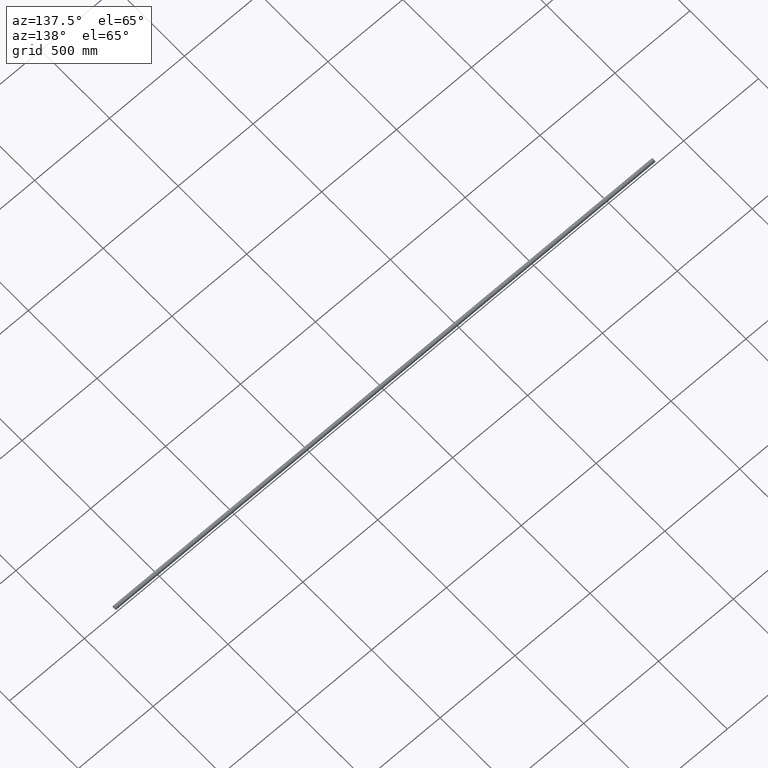
[diagram: clean part render]
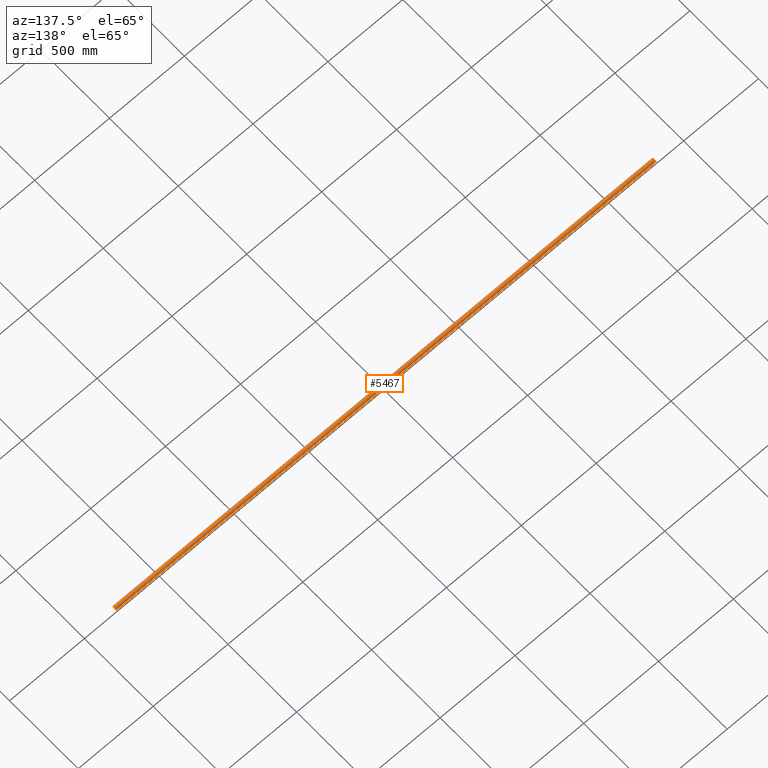
[diagram: same view with one face highlighted and labeled with its STEP entity id]
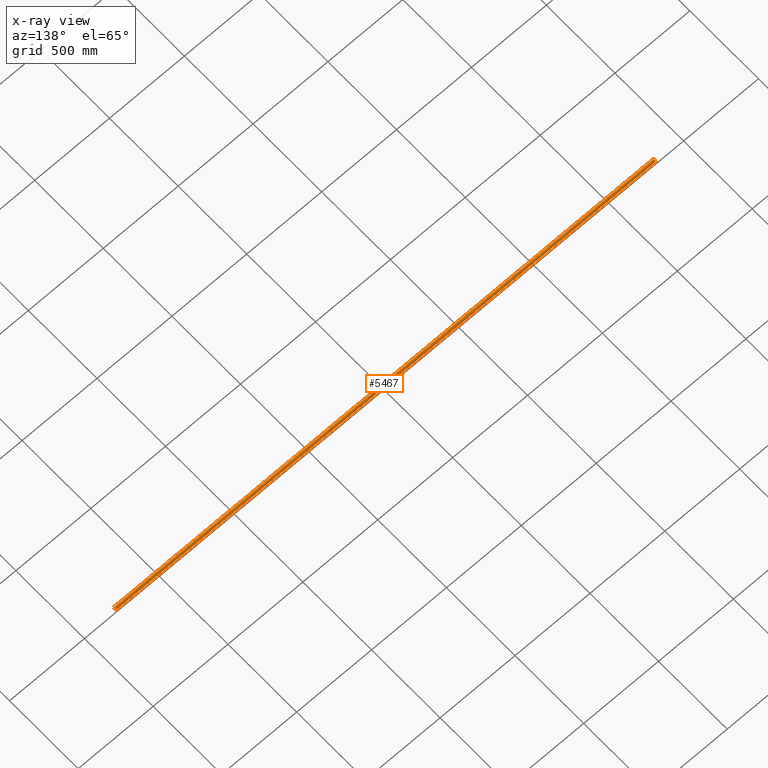
[diagram: x-ray of the same camera — body ghosted, the highlighted face saturated]
A machine part, auxiliary view. The second image highlights one B-rep face of the part: STEP entity #5467.
The next image is the same camera in x-ray: the body ghosted, the highlighted face saturated — about 0% of this face is hidden behind the body in this view.
In plain terms, the highlighted cylindrical surface (edge-blend (fillet) strip) has radius 12.5 mm, axis along (-1, -0, -0).
Its self-contained STEP definition (entity closure, byte-faithful):
#223 = EDGE_CURVE ( 'NONE', #8756, #12844, #2969, .T. ) ;
#298 = EDGE_CURVE ( 'NONE', #5387, #13818, #7184, .T. ) ;
#334 = CARTESIAN_POINT ( 'NONE',  ( -0.8820550147423875700, 3.291149578720026400, -12.05903691066762000 ) ) ;
#374 = CARTESIAN_POINT ( 'NONE',  ( 1632.948365695323900, 1.707719232637369100, -12.38420091696252900 ) ) ;
#419 = LINE ( 'NONE', #11304, #5130 ) ;
#450 = CARTESIAN_POINT ( 'NONE',  ( 1.707697899846059700, 2.948301563049316300, -12.14797926367844200 ) ) ;
#501 = CARTESIAN_POINT ( 'NONE',  ( 1633.225074856282400, 1.099126717669656000, -12.45328610117816300 ) ) ;
#553 = CARTESIAN_POINT ( 'NONE',  ( 1633.400000000000100, 1.530817149939125600E-015, -12.50000000000000000 ) ) ;
#570 = CARTESIAN_POINT ( 'NONE',  ( 3.054961297361529200, 1.508773953162645000, -12.41031890877710400 ) ) ;
#609 = CARTESIAN_POINT ( 'NONE',  ( 1628.491150577891900, 3.054930781526008100, -12.12126751630187900 ) ) ;
#621 = CARTESIAN_POINT ( 'NONE',  ( -815.2234455537292200, 3.400048205355171500, -12.02870201658427800 ) ) ;
#679 = CARTESIAN_POINT ( 'NONE',  ( -817.0752257788898300, 2.702454775431625000, -12.20503821577511700 ) ) ;
#715 = ORIENTED_EDGE ( 'NONE', *, *, #223, .F. ) ;
#721 = CARTESIAN_POINT ( 'NONE',  ( 1627.441070737254200, 2.249555390737002700, -12.29693940646133000 ) ) ;
#735 = CARTESIAN_POINT ( 'NONE',  ( -817.5589292627465700, 2.249555390736871300, -12.29693940646135500 ) ) ;
#758 = VECTOR ( 'NONE', #12158, 1000.000000000000000 ) ;
#823 = CARTESIAN_POINT ( 'NONE',  ( 1627.298735638538300, 2.076693513877993600, -12.32770492924914200 ) ) ;
#842 = DIRECTION ( 'NONE',  ( -1.000000000000000000, -0.0000000000000000000, -0.0000000000000000000 ) ) ;
#962 = CARTESIAN_POINT ( 'NONE',  ( -1627.438393705202800, 2.246627044520734800, -12.29748777373633400 ) ) ;
#992 = VECTOR ( 'NONE', #8116, 1000.000000000000000 ) ;
#1005 = DIRECTION ( 'NONE',  ( 0.0000000000000000000, 0.0000000000000000000, -1.000000000000000000 ) ) ;
#1027 = CARTESIAN_POINT ( 'NONE',  ( -1631.099029707849000, 3.225114317319371700, -12.07710089060663700 ) ) ;
#1098 = CARTESIAN_POINT ( 'NONE',  ( -811.6000000000001400, 1.530817147818667500E-015, -12.50000000000000000 ) ) ;
#1137 = CARTESIAN_POINT ( 'NONE',  ( -818.3999999999999800, 1.240253457150525300E-014, -12.50000000000000000 ) ) ;
#1328 = EDGE_CURVE ( 'NONE', #8756, #3511, #16482, .T. ) ;
#1342 = CARTESIAN_POINT ( 'NONE',  ( 818.3782807585406500, 0.4448867375077629700, -12.49403760771221900 ) ) ;
#1369 = CARTESIAN_POINT ( 'NONE',  ( 3.399999999999988400, 0.2224906580846638700, -12.50000000000000200 ) ) ;
#1645 = EDGE_CURVE ( 'NONE', #6849, #9972, #14771, .T. ) ;
#1705 = CARTESIAN_POINT ( 'NONE',  ( 3.225074856282216000, 1.099126717669580500, -12.45328610117816800 ) ) ;
#1738 = CARTESIAN_POINT ( 'NONE',  ( 1800.000000000000000, 1.530808498934191500E-015, -12.50000000000000000 ) ) ;
#1747 = CARTESIAN_POINT ( 'NONE',  ( 1800.000000000000000, 1.530808498934191500E-015, -12.50000000000000000 ) ) ;
#1748 = EDGE_CURVE ( 'NONE', #14493, #10337, #4470, .T. ) ;
#1809 = CARTESIAN_POINT ( 'NONE',  ( -2.701264361461520800, 2.076693513877970500, -12.32770492924914400 ) ) ;
#1876 = CARTESIAN_POINT ( 'NONE',  ( 2.074540862761341800, 2.702775320397742000, -12.20495341510525300 ) ) ;
#1929 = CARTESIAN_POINT ( 'NONE',  ( -812.2984030861956600, 2.076183846916757900, -12.32778155075019700 ) ) ;
#1986 = CARTESIAN_POINT ( 'NONE',  ( -817.2469418888275600, 2.561224429050289700, -12.23582231181098500 ) ) ;
#2023 = CARTESIAN_POINT ( 'NONE',  ( 1627.753058111172300, 2.561224429050425100, -12.23582231181095600 ) ) ;
#2084 = CARTESIAN_POINT ( 'NONE',  ( 1626.946757799273200, 1.512253423253430800, -12.40989427573225600 ) ) ;
#2100 = CARTESIAN_POINT ( 'NONE',  ( -818.0532422007272500, 1.512253423253397500, -12.40989427573226300 ) ) ;
#2283 = CARTESIAN_POINT ( 'NONE',  ( -1628.292302100153800, 2.948301563049428700, -12.14797926367841200 ) ) ;
#2342 = CARTESIAN_POINT ( 'NONE',  ( -1627.051634304677200, 1.707719232637369100, -12.38420091696252900 ) ) ;
#2498 = CARTESIAN_POINT ( 'NONE',  ( 817.7015969138046800, 2.076183846916757900, -12.32778155075019700 ) ) ;
#2551 = CARTESIAN_POINT ( 'NONE',  ( 818.2250748562823900, 1.099126717669559800, -12.45328610117817200 ) ) ;
#2602 = CARTESIAN_POINT ( 'NONE',  ( 811.7098464286040100, 0.8858490098629775400, -12.47049837081998000 ) ) ;
#2695 = LINE ( 'NONE', #14738, #15101 ) ;
#2887 = VECTOR ( 'NONE', #842, 1000.000000000000000 ) ;
#2969 = CIRCLE ( 'NONE', #5618, 12.50000000000000000 ) ;
#3031 = CARTESIAN_POINT ( 'NONE',  ( -0.4448146387875762100, 3.378139508022349500, -12.03495784066947200 ) ) ;
#3137 = CARTESIAN_POINT ( 'NONE',  ( 1632.701596913804900, 2.076183846916918700, -12.32778155075017400 ) ) ;
#3152 = CARTESIAN_POINT ( 'NONE',  ( -3.399999999999987900, 0.2257309346313096400, -12.50000000000000400 ) ) ;
#3266 = CARTESIAN_POINT ( 'NONE',  ( -814.7750898383018200, 3.399951636918531000, -12.02872931232275500 ) ) ;
#3329 = CARTESIAN_POINT ( 'NONE',  ( -811.6000000000001400, 1.530817147818667500E-015, -12.50000000000000000 ) ) ;
#3387 = CARTESIAN_POINT ( 'NONE',  ( -812.4383937052027700, 2.246627044520512300, -12.29748777373637700 ) ) ;
#3477 = CARTESIAN_POINT ( 'NONE',  ( 1629.776554446271100, 3.400048205355289600, -12.02870201658424800 ) ) ;
#3511 = VERTEX_POINT ( 'NONE', #7296 ) ;
#3605 = CARTESIAN_POINT ( 'NONE',  ( -1800.000000000000000, 0.0000000000000000000, 0.0000000000000000000 ) ) ;
#3613 = CARTESIAN_POINT ( 'NONE',  ( -818.2901535713964400, 0.8858490098629775400, -12.47049837081998000 ) ) ;
#3654 = DIRECTION ( 'NONE',  ( 0.0000000000000000000, 0.0000000000000000000, -1.000000000000000000 ) ) ;
#3675 = CARTESIAN_POINT ( 'NONE',  ( -1630.882055014742900, 3.291149578720083300, -12.05903691066760100 ) ) ;
#3699 = CARTESIAN_POINT ( 'NONE',  ( -1800.000000000000000, 1.530808498934191500E-015, -12.50000000000000000 ) ) ;
#3727 = CARTESIAN_POINT ( 'NONE',  ( -818.3777370699434600, 0.4480304431356896300, -12.49389157976499500 ) ) ;
#3741 = CARTESIAN_POINT ( 'NONE',  ( -1628.901327185810000, 3.225401577628083300, -12.07703201683446500 ) ) ;
#3776 = CARTESIAN_POINT ( 'NONE',  ( 817.0745408627613000, 2.702775320397728700, -12.20495341510524800 ) ) ;
#3823 = CARTESIAN_POINT ( 'NONE',  ( 816.5128177256833600, 3.053142613515797500, -12.12172586120244800 ) ) ;
#3872 = CARTESIAN_POINT ( 'NONE',  ( 811.6000000000001400, 0.2257309346313073600, -12.49999999999999800 ) ) ;
#3922 = CARTESIAN_POINT ( 'NONE',  ( 811.7761616718571500, 1.102753275414778200, -12.45296436855722700 ) ) ;
#3978 = CARTESIAN_POINT ( 'NONE',  ( 813.4911505778915200, 3.054930781525983600, -12.12126751630187900 ) ) ;
#4229 = CARTESIAN_POINT ( 'NONE',  ( -2.558929262746102700, 2.249555390736926800, -12.29693940646134300 ) ) ;
#4288 = CARTESIAN_POINT ( 'NONE',  ( 2.701596913804633600, 2.076183846916805500, -12.32778155075019200 ) ) ;
#4351 = CARTESIAN_POINT ( 'NONE',  ( -2.075225778890007700, 2.702454775431597100, -12.20503821577512800 ) ) ;
#4443 = CARTESIAN_POINT ( 'NONE',  ( 1632.248139031426000, 2.560279434377590300, -12.23603317420600000 ) ) ;
#4470 = B_SPLINE_CURVE_WITH_KNOTS ( 'NONE', 3,
 ( #3329, #9722, #13683, #5971, #8526, #4515, #11115, #1929, #3387, #7110, #5906, #7277, #16188, #4626, #11022, #15012, #3266, #621, #16360, #5858, #14961, #16237, #8472, #679, #1986, #735, #12427, #15066, #2100, #7453, #3613, #3727, #15182, #1137 ),
 .UNSPECIFIED., .F., .F.,
 ( 4, 2, 2, 2, 2, 2, 2, 2, 2, 2, 2, 2, 2, 2, 2, 2, 4 ),
 ( 0.01068048760817228200, 0.01134783680047156600, 0.01201518599277084900, 0.01268253518507013100, 0.01334988437736941500, 0.01401723356966869800, 0.01468458276196798000, 0.01535193195426726300, 0.01601928114656654700, 0.01668663033886583200, 0.01735397953116511400, 0.01802132872346439600, 0.01868867791576368100, 0.01935602710806296300, 0.02002337630036224400, 0.02069072549266153000, 0.02135807468496081100 ),
 .UNSPECIFIED. ) ;
#4515 = CARTESIAN_POINT ( 'NONE',  ( -811.9450387026383900, 1.508773953162621000, -12.41031890877710200 ) ) ;
#4560 = CARTESIAN_POINT ( 'NONE',  ( 1629.117944985257700, 3.291149578720083300, -12.05903691066760100 ) ) ;
#4626 = CARTESIAN_POINT ( 'NONE',  ( -813.9013271858090100, 3.225401577627969600, -12.07703201683448800 ) ) ;
#4659 = CARTESIAN_POINT ( 'NONE',  ( 1629.555185361212400, 3.378139508022424600, -12.03495784066944600 ) ) ;
#4681 = EDGE_CURVE ( 'NONE', #11366, #14692, #7128, .T. ) ;
#4693 = DIRECTION ( 'NONE',  ( -1.000000000000000000, -0.0000000000000000000, -0.0000000000000000000 ) ) ;
#4716 = CARTESIAN_POINT ( 'NONE',  ( 1626.776161671856900, 1.102753275414796000, -12.45296436855723100 ) ) ;
#4827 = CARTESIAN_POINT ( 'NONE',  ( 1800.000000000000000, 0.0000000000000000000, 0.0000000000000000000 ) ) ;
#4908 = CARTESIAN_POINT ( 'NONE',  ( -1626.709897091792800, 0.8865257729732701800, -12.47048403254627800 ) ) ;
#4980 = CARTESIAN_POINT ( 'NONE',  ( -1627.751860968574000, 2.560279434377590300, -12.23603317420600000 ) ) ;
#5035 = CARTESIAN_POINT ( 'NONE',  ( -1632.246941888827900, 2.561224429050425100, -12.23582231181095600 ) ) ;
#5064 = CARTESIAN_POINT ( 'NONE',  ( 814.7765544462710100, 3.400048205355171500, -12.02870201658427800 ) ) ;
#5081 = CARTESIAN_POINT ( 'NONE',  ( -1626.621719241459900, 0.4448867375077864000, -12.49403760771221700 ) ) ;
#5113 = CARTESIAN_POINT ( 'NONE',  ( 814.5551853612125800, 3.378139508022326000, -12.03495784066947700 ) ) ;
#5130 = VECTOR ( 'NONE', #4693, 1000.000000000000000 ) ;
#5144 = CARTESIAN_POINT ( 'NONE',  ( -1626.599999999999900, 0.2224906580846714400, -12.50000000000000000 ) ) ;
#5189 = ORIENTED_EDGE ( 'NONE', *, *, #298, .T. ) ;
#5387 = VERTEX_POINT ( 'NONE', #16691 ) ;
#5390 = CARTESIAN_POINT ( 'NONE',  ( 1800.000000000000000, 1.530808498934191500E-015, -12.50000000000000000 ) ) ;
#5406 = CARTESIAN_POINT ( 'NONE',  ( -1633.377737069943800, 0.4480304431356929000, -12.49389157976499500 ) ) ;
#5467 = ADVANCED_FACE ( 'NONE', ( #7368 ), #7188, .T. ) ;
#5522 = CARTESIAN_POINT ( 'NONE',  ( 2.948365695323054600, 1.707719232637258800, -12.38420091696254100 ) ) ;
#5569 = CARTESIAN_POINT ( 'NONE',  ( 1633.290102908205900, 0.8865257729732701800, -12.47048403254627800 ) ) ;
#5570 = DIRECTION ( 'NONE',  ( -1.000000000000000000, -0.0000000000000000000, -0.0000000000000000000 ) ) ;
#5618 = AXIS2_PLACEMENT_3D ( 'NONE', #4827, #13895, #3654 ) ;
#5729 = CARTESIAN_POINT ( 'NONE',  ( 1632.074540862761500, 2.702775320397860600, -12.20495341510522500 ) ) ;
#5858 = CARTESIAN_POINT ( 'NONE',  ( -815.8820550147422600, 3.291149578720000200, -12.05903691066762600 ) ) ;
#5892 = ORIENTED_EDGE ( 'NONE', *, *, #9122, .F. ) ;
#5894 = CARTESIAN_POINT ( 'NONE',  ( 1626.622262930056900, 0.4480304431356929000, -12.49389157976499500 ) ) ;
#5906 = CARTESIAN_POINT ( 'NONE',  ( -812.9254591372384800, 2.702775320397728700, -12.20495341510524800 ) ) ;
#5916 = ORIENTED_EDGE ( 'NONE', *, *, #14148, .T. ) ;
#5958 = CARTESIAN_POINT ( 'NONE',  ( 1626.600000000000400, 0.2257309346313159700, -12.50000000000000200 ) ) ;
#5971 = CARTESIAN_POINT ( 'NONE',  ( -811.7098970917936600, 0.8865257729732174400, -12.47048403254628500 ) ) ;
#6090 = CARTESIAN_POINT ( 'NONE',  ( -1633.400000000000100, -9.932824226667062300E-015, -12.50000000000000000 ) ) ;
#6126 = ORIENTED_EDGE ( 'NONE', *, *, #8505, .T. ) ;
#6264 = CARTESIAN_POINT ( 'NONE',  ( -1631.508849422109100, 3.054930781526008100, -12.12126751630187900 ) ) ;
#6321 = CARTESIAN_POINT ( 'NONE',  ( -1632.701264361462100, 2.076693513877993600, -12.32770492924914200 ) ) ;
#6367 = CARTESIAN_POINT ( 'NONE',  ( 812.4410707372542200, 2.249555390736871300, -12.29693940646135500 ) ) ;
#6386 = CARTESIAN_POINT ( 'NONE',  ( -1633.053242200727000, 1.512253423253430800, -12.40989427573225600 ) ) ;
#6411 = CARTESIAN_POINT ( 'NONE',  ( 811.6222629300565400, 0.4480304431356896300, -12.49389157976499500 ) ) ;
#6433 = CARTESIAN_POINT ( 'NONE',  ( -1626.774925143717800, 1.099126717669656000, -12.45328610117816300 ) ) ;
#6463 = CARTESIAN_POINT ( 'NONE',  ( 818.4000000000000900, 1.530817147818667500E-015, -12.50000000000000000 ) ) ;
#6510 = CARTESIAN_POINT ( 'NONE',  ( 817.2481390314260400, 2.560279434377374500, -12.23603317420604600 ) ) ;
#6532 = LINE ( 'NONE', #1738, #992 ) ;
#6542 = CARTESIAN_POINT ( 'NONE',  ( -1633.290153571396600, 0.8858490098630040800, -12.47049837081997800 ) ) ;
#6700 = ORIENTED_EDGE ( 'NONE', *, *, #8636, .T. ) ;
#6833 = CARTESIAN_POINT ( 'NONE',  ( -3.290153571396316600, 0.8858490098629751000, -12.47049837081998200 ) ) ;
#6849 = VERTEX_POINT ( 'NONE', #15580 ) ;
#6888 = CARTESIAN_POINT ( 'NONE',  ( 2.561606294797429000, 2.246627044520570000, -12.29748777373636600 ) ) ;
#7110 = CARTESIAN_POINT ( 'NONE',  ( -812.7518609685737400, 2.560279434377374500, -12.23603317420604600 ) ) ;
#7128 = CIRCLE ( 'NONE', #12283, 12.50000000000000000 ) ;
#7170 = ORIENTED_EDGE ( 'NONE', *, *, #8918, .T. ) ;
#7184 = B_SPLINE_CURVE_WITH_KNOTS ( 'NONE', 3,
 ( #6463, #11508, #1342, #10448, #2551, #16836, #12863, #2498, #15504, #6510, #3776, #8959, #3823, #14350, #12804, #7716, #15645, #5064, #5113, #11726, #14127, #3978, #16791, #10334, #16735, #6367, #9074, #14183, #15555, #3922, #2602, #6411, #3872, #13019 ),
 .UNSPECIFIED., .F., .F.,
 ( 4, 2, 2, 2, 2, 2, 2, 2, 2, 2, 2, 2, 2, 2, 2, 2, 4 ),
 ( 0.01068048760817228200, 0.01134783680047156600, 0.01201518599277084900, 0.01268253518507013100, 0.01334988437736941500, 0.01401723356966869800, 0.01468458276196798000, 0.01535193195426726300, 0.01601928114656654700, 0.01668663033886583200, 0.01735397953116511400, 0.01802132872346439600, 0.01868867791576368100, 0.01935602710806296300, 0.02002337630036224400, 0.02069072549266153000, 0.02135807468496081100 ),
 .UNSPECIFIED. ) ;
#7188 = CYLINDRICAL_SURFACE ( 'NONE', #14256, 12.50000000000000000 ) ;
#7277 = CARTESIAN_POINT ( 'NONE',  ( -813.2923021001540700, 2.948301563049304400, -12.14797926367844400 ) ) ;
#7296 = CARTESIAN_POINT ( 'NONE',  ( 1633.400000000000100, 1.530817149939125600E-015, -12.50000000000000000 ) ) ;
#7327 = CARTESIAN_POINT ( 'NONE',  ( 1800.000000000000000, 1.530808498934191500E-015, -12.50000000000000000 ) ) ;
#7368 = FACE_OUTER_BOUND ( 'NONE', #14872, .T. ) ;
#7453 = CARTESIAN_POINT ( 'NONE',  ( -818.2238383281430700, 1.102753275414778200, -12.45296436855722700 ) ) ;
#7629 = CARTESIAN_POINT ( 'NONE',  ( -1633.223838328144000, 1.102753275414796000, -12.45296436855723100 ) ) ;
#7672 = CARTESIAN_POINT ( 'NONE',  ( 1800.000000000000000, 0.0000000000000000000, 0.0000000000000000000 ) ) ;
#7694 = VERTEX_POINT ( 'NONE', #12657 ) ;
#7696 = B_SPLINE_CURVE_WITH_KNOTS ( 'NONE', 3,
 ( #8825, #5144, #5081, #4908, #6433, #15527, #2342, #11351, #962, #4980, #10078, #2283, #11474, #3741, #13974, #15464, #14036, #16759, #16587, #3675, #1027, #6264, #15371, #12765, #5035, #14099, #6321, #15420, #6386, #7629, #6542, #5406, #10357, #9098 ),
 .UNSPECIFIED., .F., .F.,
 ( 4, 2, 2, 2, 2, 2, 2, 2, 2, 2, 2, 2, 2, 2, 2, 2, 4 ),
 ( 0.01068048760817264100, 0.01134783680047194900, 0.01201518599277125500, 0.01268253518507056500, 0.01334988437736987300, 0.01401723356966918000, 0.01468458276196848800, 0.01535193195426779600, 0.01601928114656710200, 0.01668663033886641500, 0.01735397953116572100, 0.01802132872346502700, 0.01868867791576433300, 0.01935602710806364300, 0.02002337630036294900, 0.02069072549266225800, 0.02135807468496156400 ),
 .UNSPECIFIED. ) ;
#7716 = CARTESIAN_POINT ( 'NONE',  ( 815.4500052350433600, 3.377392597374309100, -12.03516786154909300 ) ) ;
#7837 = DIRECTION ( 'NONE',  ( 0.0000000000000000000, 0.0000000000000000000, 1.000000000000000000 ) ) ;
#8116 = DIRECTION ( 'NONE',  ( -1.000000000000000000, -0.0000000000000000000, -0.0000000000000000000 ) ) ;
#8149 = ORIENTED_EDGE ( 'NONE', *, *, #15011, .T. ) ;
#8179 = CARTESIAN_POINT ( 'NONE',  ( 1633.399999999999900, 0.2224906580846714400, -12.50000000000000000 ) ) ;
#8250 = CARTESIAN_POINT ( 'NONE',  ( -2.948822403490601700, 1.707024174918695600, -12.38430592481708800 ) ) ;
#8299 = CARTESIAN_POINT ( 'NONE',  ( -3.399999999999987900, -3.085611381634476200E-019, -12.50000000000000000 ) ) ;
#8346 = CARTESIAN_POINT ( 'NONE',  ( 1631.512817725683400, 3.053142613515909000, -12.12172586120242100 ) ) ;
#8472 = CARTESIAN_POINT ( 'NONE',  ( -816.7041004218791600, 2.950570385327931700, -12.14744228481905900 ) ) ;
#8505 = EDGE_CURVE ( 'NONE', #13818, #6849, #2695, .T. ) ;
#8526 = CARTESIAN_POINT ( 'NONE',  ( -811.7749251437178400, 1.099126717669559800, -12.45328610117817200 ) ) ;
#8636 = EDGE_CURVE ( 'NONE', #7694, #13732, #7696, .T. ) ;
#8756 = VERTEX_POINT ( 'NONE', #5390 ) ;
#8791 = ORIENTED_EDGE ( 'NONE', *, *, #1645, .T. ) ;
#8825 = CARTESIAN_POINT ( 'NONE',  ( -1626.600000000000100, 1.530817149939125600E-015, -12.50000000000000000 ) ) ;
#8918 = EDGE_CURVE ( 'NONE', #14978, #5387, #16711, .T. ) ;
#8959 = CARTESIAN_POINT ( 'NONE',  ( 816.7076978998461500, 2.948301563049304400, -12.14797926367844400 ) ) ;
#9074 = CARTESIAN_POINT ( 'NONE',  ( 812.2987356385388000, 2.076693513877929200, -12.32770492924915700 ) ) ;
#9098 = CARTESIAN_POINT ( 'NONE',  ( -1633.400000000000100, -9.932824226667062300E-015, -12.50000000000000000 ) ) ;
#9122 = EDGE_CURVE ( 'NONE', #12844, #14692, #419, .T. ) ;
#9496 = CARTESIAN_POINT ( 'NONE',  ( -0.2234455537290499200, 3.400048205355200800, -12.02870201658427800 ) ) ;
#9568 = DIRECTION ( 'NONE',  ( -1.000000000000000000, -0.0000000000000000000, -0.0000000000000000000 ) ) ;
#9623 = CARTESIAN_POINT ( 'NONE',  ( -3.223838328143045800, 1.102753275414799100, -12.45296436855723100 ) ) ;
#9656 = CARTESIAN_POINT ( 'NONE',  ( -3.399999999999987900, -3.085611381634476200E-019, -12.50000000000000000 ) ) ;
#9691 = CARTESIAN_POINT ( 'NONE',  ( -818.3999999999999800, 1.240253457150525300E-014, -12.50000000000000000 ) ) ;
#9722 = CARTESIAN_POINT ( 'NONE',  ( -811.6000000000002500, 0.2224906580846630300, -12.50000000000000000 ) ) ;
#9737 = ORIENTED_EDGE ( 'NONE', *, *, #15791, .T. ) ;
#9822 = CARTESIAN_POINT ( 'NONE',  ( 1630.224910161698500, 3.399951636918634900, -12.02872931232272400 ) ) ;
#9875 = CARTESIAN_POINT ( 'NONE',  ( 1628.295899578121200, 2.950570385328055200, -12.14744228481902900 ) ) ;
#9972 = VERTEX_POINT ( 'NONE', #9656 ) ;
#10078 = CARTESIAN_POINT ( 'NONE',  ( -1627.925459137238700, 2.702775320397860600, -12.20495341510522500 ) ) ;
#10165 = CARTESIAN_POINT ( 'NONE',  ( 1800.000000000000000, 0.0000000000000000000, 12.50000000000000000 ) ) ;
#10334 = CARTESIAN_POINT ( 'NONE',  ( 812.9247742211100600, 2.702454775431625000, -12.20503821577511700 ) ) ;
#10336 = CARTESIAN_POINT ( 'NONE',  ( 1800.000000000000000, 1.530808498934191500E-015, -12.50000000000000000 ) ) ;
#10337 = VERTEX_POINT ( 'NONE', #9691 ) ;
#10342 = DIRECTION ( 'NONE',  ( -1.000000000000000000, -0.0000000000000000000, -0.0000000000000000000 ) ) ;
#10357 = CARTESIAN_POINT ( 'NONE',  ( -1633.400000000000300, 0.2257309346313159700, -12.50000000000000200 ) ) ;
#10448 = CARTESIAN_POINT ( 'NONE',  ( 818.2901029082067900, 0.8865257729732174400, -12.47048403254628500 ) ) ;
#10902 = CARTESIAN_POINT ( 'NONE',  ( 1633.054961297361600, 1.508773953162735800, -12.41031890877709300 ) ) ;
#10914 = CARTESIAN_POINT ( 'NONE',  ( -3.053242200727046100, 1.512253423253419500, -12.40989427573226000 ) ) ;
#10958 = CARTESIAN_POINT ( 'NONE',  ( 0.4500052350430838700, 3.377392597374347700, -12.03516786154908400 ) ) ;
#11022 = CARTESIAN_POINT ( 'NONE',  ( -814.1146337435512800, 3.290199395220138700, -12.05929658612623900 ) ) ;
#11115 = CARTESIAN_POINT ( 'NONE',  ( -812.0516343046769000, 1.707719232637206600, -12.38420091696254300 ) ) ;
#11213 = CARTESIAN_POINT ( 'NONE',  ( 1630.885366256449100, 3.290199395220273700, -12.05929658612620200 ) ) ;
#11304 = CARTESIAN_POINT ( 'NONE',  ( 1800.000000000000000, 0.0000000000000000000, 12.50000000000000000 ) ) ;
#11351 = CARTESIAN_POINT ( 'NONE',  ( -1627.298403086195800, 2.076183846916918700, -12.32778155075017400 ) ) ;
#11366 = VERTEX_POINT ( 'NONE', #3699 ) ;
#11405 = ORIENTED_EDGE ( 'NONE', *, *, #1748, .T. ) ;
#11464 = CARTESIAN_POINT ( 'NONE',  ( 811.6000000000002500, 1.240253457150525300E-014, -12.50000000000000000 ) ) ;
#11474 = CARTESIAN_POINT ( 'NONE',  ( -1628.487182274316900, 3.053142613515909000, -12.12172586120242100 ) ) ;
#11508 = CARTESIAN_POINT ( 'NONE',  ( 818.4000000000000900, 0.2224906580846630300, -12.50000000000000000 ) ) ;
#11537 = LINE ( 'NONE', #12541, #758 ) ;
#11726 = CARTESIAN_POINT ( 'NONE',  ( 814.1179449852577400, 3.291149578720000200, -12.05903691066762600 ) ) ;
#11830 = CARTESIAN_POINT ( 'NONE',  ( 1626.600000000000100, -9.932824226667062300E-015, -12.50000000000000000 ) ) ;
#11982 = CARTESIAN_POINT ( 'NONE',  ( -1.508849422108623300, 3.054930781526016500, -12.12126751630187000 ) ) ;
#12029 = CARTESIAN_POINT ( 'NONE',  ( 1633.378280758540300, 0.4448867375077864000, -12.49403760771221700 ) ) ;
#12158 = DIRECTION ( 'NONE',  ( -1.000000000000000000, -0.0000000000000000000, -0.0000000000000000000 ) ) ;
#12189 = CARTESIAN_POINT ( 'NONE',  ( 1632.561606294797700, 2.246627044520734800, -12.29748777373633400 ) ) ;
#12205 = CARTESIAN_POINT ( 'NONE',  ( 0.2249101616983749900, 3.399951636918561200, -12.02872931232274900 ) ) ;
#12283 = AXIS2_PLACEMENT_3D ( 'NONE', #3605, #15353, #1005 ) ;
#12310 = CARTESIAN_POINT ( 'NONE',  ( 1631.098672814191600, 3.225401577628083300, -12.07703201683446500 ) ) ;
#12427 = CARTESIAN_POINT ( 'NONE',  ( -817.7012643614616500, 2.076693513877929200, -12.32770492924915700 ) ) ;
#12431 = VECTOR ( 'NONE', #5570, 1000.000000000000000 ) ;
#12541 = CARTESIAN_POINT ( 'NONE',  ( 1800.000000000000000, 1.530808498934191500E-015, -12.50000000000000000 ) ) ;
#12657 = CARTESIAN_POINT ( 'NONE',  ( -1626.600000000000100, 1.530817149939125600E-015, -12.50000000000000000 ) ) ;
#12765 = CARTESIAN_POINT ( 'NONE',  ( -1632.075225778889900, 2.702454775431760900, -12.20503821577508900 ) ) ;
#12804 = CARTESIAN_POINT ( 'NONE',  ( 815.8853662564489500, 3.290199395220138700, -12.05929658612623900 ) ) ;
#12844 = VERTEX_POINT ( 'NONE', #10165 ) ;
#12863 = CARTESIAN_POINT ( 'NONE',  ( 817.9483656953229900, 1.707719232637206600, -12.38420091696254300 ) ) ;
#12946 = VECTOR ( 'NONE', #16737, 1000.000000000000000 ) ;
#13019 = CARTESIAN_POINT ( 'NONE',  ( 811.6000000000002500, 1.240253457150525300E-014, -12.50000000000000000 ) ) ;
#13169 = ORIENTED_EDGE ( 'NONE', *, *, #1328, .T. ) ;
#13220 = CARTESIAN_POINT ( 'NONE',  ( 3.378280758540311600, 0.4448867375077679700, -12.49403760771222100 ) ) ;
#13278 = CARTESIAN_POINT ( 'NONE',  ( 0.8853662564486808300, 3.290199395220185800, -12.05929658612622800 ) ) ;
#13333 = CARTESIAN_POINT ( 'NONE',  ( -1.704100421879114700, 2.950570385327913000, -12.14744228481906400 ) ) ;
#13505 = CARTESIAN_POINT ( 'NONE',  ( 1.512817725683325700, 3.053142613515821100, -12.12172586120244100 ) ) ;
#13605 = CARTESIAN_POINT ( 'NONE',  ( 1627.051177596509200, 1.707024174918713200, -12.38430592481708500 ) ) ;
#13683 = CARTESIAN_POINT ( 'NONE',  ( -811.6217192414598000, 0.4448867375077629700, -12.49403760771221900 ) ) ;
#13696 = ORIENTED_EDGE ( 'NONE', *, *, #4681, .T. ) ;
#13723 = CARTESIAN_POINT ( 'NONE',  ( 1628.900970292150300, 3.225114317319371700, -12.07710089060663700 ) ) ;
#13732 = VERTEX_POINT ( 'NONE', #6090 ) ;
#13769 = CARTESIAN_POINT ( 'NONE',  ( 1626.709846428603700, 0.8858490098630040800, -12.47049837081997800 ) ) ;
#13818 = VERTEX_POINT ( 'NONE', #11464 ) ;
#13895 = DIRECTION ( 'NONE',  ( 1.000000000000000000, 0.0000000000000000000, 0.0000000000000000000 ) ) ;
#13974 = CARTESIAN_POINT ( 'NONE',  ( -1629.114633743551600, 3.290199395220273700, -12.05929658612620200 ) ) ;
#13999 = B_SPLINE_CURVE_WITH_KNOTS ( 'NONE', 3,
 ( #553, #8179, #12029, #5569, #501, #10902, #374, #3137, #12189, #4443, #5729, #16125, #8346, #12310, #11213, #16348, #9822, #3477, #4659, #4560, #13723, #609, #9875, #16173, #2023, #721, #823, #13605, #2084, #4716, #13769, #5894, #5958, #15050 ),
 .UNSPECIFIED., .F., .F.,
 ( 4, 2, 2, 2, 2, 2, 2, 2, 2, 2, 2, 2, 2, 2, 2, 2, 4 ),
 ( 0.01068048760817264100, 0.01134783680047194900, 0.01201518599277125500, 0.01268253518507056500, 0.01334988437736987300, 0.01401723356966918000, 0.01468458276196848800, 0.01535193195426779600, 0.01601928114656710200, 0.01668663033886641500, 0.01735397953116572100, 0.01802132872346502700, 0.01868867791576433300, 0.01935602710806364300, 0.02002337630036294900, 0.02069072549266225800, 0.02135807468496156400 ),
 .UNSPECIFIED. ) ;
#14036 = CARTESIAN_POINT ( 'NONE',  ( -1629.775089838301700, 3.399951636918634900, -12.02872931232272400 ) ) ;
#14099 = CARTESIAN_POINT ( 'NONE',  ( -1632.558929262746200, 2.249555390737002700, -12.29693940646133000 ) ) ;
#14127 = CARTESIAN_POINT ( 'NONE',  ( 813.9009702921512100, 3.225114317319322000, -12.07710089060665500 ) ) ;
#14148 = EDGE_CURVE ( 'NONE', #9972, #14493, #6532, .T. ) ;
#14183 = CARTESIAN_POINT ( 'NONE',  ( 812.0511775965095500, 1.707024174918659000, -12.38430592481709500 ) ) ;
#14187 = LINE ( 'NONE', #10336, #12946 ) ;
#14256 = AXIS2_PLACEMENT_3D ( 'NONE', #7672, #10342, #7837 ) ;
#14350 = CARTESIAN_POINT ( 'NONE',  ( 816.0986728141911000, 3.225401577627969600, -12.07703201683448800 ) ) ;
#14493 = VERTEX_POINT ( 'NONE', #1098 ) ;
#14496 = CARTESIAN_POINT ( 'NONE',  ( -1800.000000000000000, 0.0000000000000000000, 12.50000000000000000 ) ) ;
#14610 = CARTESIAN_POINT ( 'NONE',  ( 1.098672814191161000, 3.225401577627994500, -12.07703201683448700 ) ) ;
#14692 = VERTEX_POINT ( 'NONE', #14496 ) ;
#14738 = CARTESIAN_POINT ( 'NONE',  ( 1800.000000000000000, 1.530808498934191500E-015, -12.50000000000000000 ) ) ;
#14771 = B_SPLINE_CURVE_WITH_KNOTS ( 'NONE', 3,
 ( #15804, #1369, #13220, #15973, #1705, #570, #5522, #4288, #6888, #16022, #1876, #450, #13505, #14610, #13278, #10958, #12205, #9496, #3031, #334, #14838, #11982, #13333, #4351, #15922, #4229, #1809, #8250, #10914, #9623, #6833, #16072, #3152, #8299 ),
 .UNSPECIFIED., .F., .F.,
 ( 4, 2, 2, 2, 2, 2, 2, 2, 2, 2, 2, 2, 2, 2, 2, 2, 4 ),
 ( 0.01068048760817239500, 0.01134783680047168500, 0.01201518599277097800, 0.01268253518507026800, 0.01334988437736955900, 0.01401723356966884900, 0.01468458276196813900, 0.01535193195426743000, 0.01601928114656672000, 0.01668663033886601300, 0.01735397953116530100, 0.01802132872346459300, 0.01868867791576388200, 0.01935602710806317400, 0.02002337630036246700, 0.02069072549266175900, 0.02135807468496104700 ),
 .UNSPECIFIED. ) ;
#14838 = CARTESIAN_POINT ( 'NONE',  ( -1.099029707848881500, 3.225114317319354400, -12.07710089060664600 ) ) ;
#14847 = ORIENTED_EDGE ( 'NONE', *, *, #15252, .T. ) ;
#14872 = EDGE_LOOP ( 'NONE', ( #715, #13169, #9737, #7170, #5189, #6126, #8791, #5916, #11405, #8149, #6700, #14847, #13696, #5892 ) ) ;
#14961 = CARTESIAN_POINT ( 'NONE',  ( -816.0990297078491300, 3.225114317319322000, -12.07710089060665500 ) ) ;
#14978 = VERTEX_POINT ( 'NONE', #11830 ) ;
#15011 = EDGE_CURVE ( 'NONE', #10337, #7694, #11537, .T. ) ;
#15012 = CARTESIAN_POINT ( 'NONE',  ( -814.5499947649573200, 3.377392597374309100, -12.03516786154909300 ) ) ;
#15050 = CARTESIAN_POINT ( 'NONE',  ( 1626.600000000000100, -9.932824226667062300E-015, -12.50000000000000000 ) ) ;
#15066 = CARTESIAN_POINT ( 'NONE',  ( -817.9488224034904500, 1.707024174918659000, -12.38430592481709500 ) ) ;
#15101 = VECTOR ( 'NONE', #9568, 1000.000000000000000 ) ;
#15182 = CARTESIAN_POINT ( 'NONE',  ( -818.3999999999997500, 0.2257309346313073600, -12.49999999999999800 ) ) ;
#15252 = EDGE_CURVE ( 'NONE', #13732, #11366, #14187, .T. ) ;
#15353 = DIRECTION ( 'NONE',  ( 1.000000000000000000, 0.0000000000000000000, 0.0000000000000000000 ) ) ;
#15371 = CARTESIAN_POINT ( 'NONE',  ( -1631.704100421879000, 2.950570385328055200, -12.14744228481902900 ) ) ;
#15420 = CARTESIAN_POINT ( 'NONE',  ( -1632.948822403490600, 1.707024174918713200, -12.38430592481708500 ) ) ;
#15464 = CARTESIAN_POINT ( 'NONE',  ( -1629.549994764956900, 3.377392597374443600, -12.03516786154905600 ) ) ;
#15504 = CARTESIAN_POINT ( 'NONE',  ( 817.5616062947978000, 2.246627044520512300, -12.29748777373637700 ) ) ;
#15527 = CARTESIAN_POINT ( 'NONE',  ( -1626.945038702638800, 1.508773953162735800, -12.41031890877709300 ) ) ;
#15555 = CARTESIAN_POINT ( 'NONE',  ( 811.9467577992733100, 1.512253423253397500, -12.40989427573226300 ) ) ;
#15580 = CARTESIAN_POINT ( 'NONE',  ( 3.399999999999987900, 1.530817148184698900E-015, -12.50000000000000000 ) ) ;
#15645 = CARTESIAN_POINT ( 'NONE',  ( 815.2249101616986300, 3.399951636918531000, -12.02872931232275500 ) ) ;
#15791 = EDGE_CURVE ( 'NONE', #3511, #14978, #13999, .T. ) ;
#15804 = CARTESIAN_POINT ( 'NONE',  ( 3.399999999999987900, 1.530817148184698900E-015, -12.50000000000000000 ) ) ;
#15922 = CARTESIAN_POINT ( 'NONE',  ( -2.246941888827483700, 2.561224429050344800, -12.23582231181097100 ) ) ;
#15973 = CARTESIAN_POINT ( 'NONE',  ( 3.290102908206402600, 0.8865257729732264300, -12.47048403254628100 ) ) ;
#16022 = CARTESIAN_POINT ( 'NONE',  ( 2.248139031426001900, 2.560279434377429600, -12.23603317420603700 ) ) ;
#16072 = CARTESIAN_POINT ( 'NONE',  ( -3.377737069943542300, 0.4480304431356853000, -12.49389157976499100 ) ) ;
#16125 = CARTESIAN_POINT ( 'NONE',  ( 1631.707697899845900, 2.948301563049428700, -12.14797926367841200 ) ) ;
#16173 = CARTESIAN_POINT ( 'NONE',  ( 1627.924774221109800, 2.702454775431760900, -12.20503821577508900 ) ) ;
#16188 = CARTESIAN_POINT ( 'NONE',  ( -813.4871822743167500, 3.053142613515797500, -12.12172586120244800 ) ) ;
#16237 = CARTESIAN_POINT ( 'NONE',  ( -816.5088494221086000, 3.054930781525983600, -12.12126751630187900 ) ) ;
#16348 = CARTESIAN_POINT ( 'NONE',  ( 1630.450005235043100, 3.377392597374443600, -12.03516786154905600 ) ) ;
#16360 = CARTESIAN_POINT ( 'NONE',  ( -815.4448146387878800, 3.378139508022326000, -12.03495784066947700 ) ) ;
#16482 = LINE ( 'NONE', #7327, #2887 ) ;
#16587 = CARTESIAN_POINT ( 'NONE',  ( -1630.444814638787900, 3.378139508022424600, -12.03495784066944600 ) ) ;
#16691 = CARTESIAN_POINT ( 'NONE',  ( 818.4000000000000900, 1.530817147818667500E-015, -12.50000000000000000 ) ) ;
#16711 = LINE ( 'NONE', #1747, #12431 ) ;
#16735 = CARTESIAN_POINT ( 'NONE',  ( 812.7530581111727800, 2.561224429050289700, -12.23582231181098500 ) ) ;
#16737 = DIRECTION ( 'NONE',  ( -1.000000000000000000, -0.0000000000000000000, -0.0000000000000000000 ) ) ;
#16759 = CARTESIAN_POINT ( 'NONE',  ( -1630.223445553729300, 3.400048205355289600, -12.02870201658424800 ) ) ;
#16791 = CARTESIAN_POINT ( 'NONE',  ( 813.2958995781211800, 2.950570385327931700, -12.14744228481905900 ) ) ;
#16836 = CARTESIAN_POINT ( 'NONE',  ( 818.0549612973612700, 1.508773953162621000, -12.41031890877710200 ) ) ;